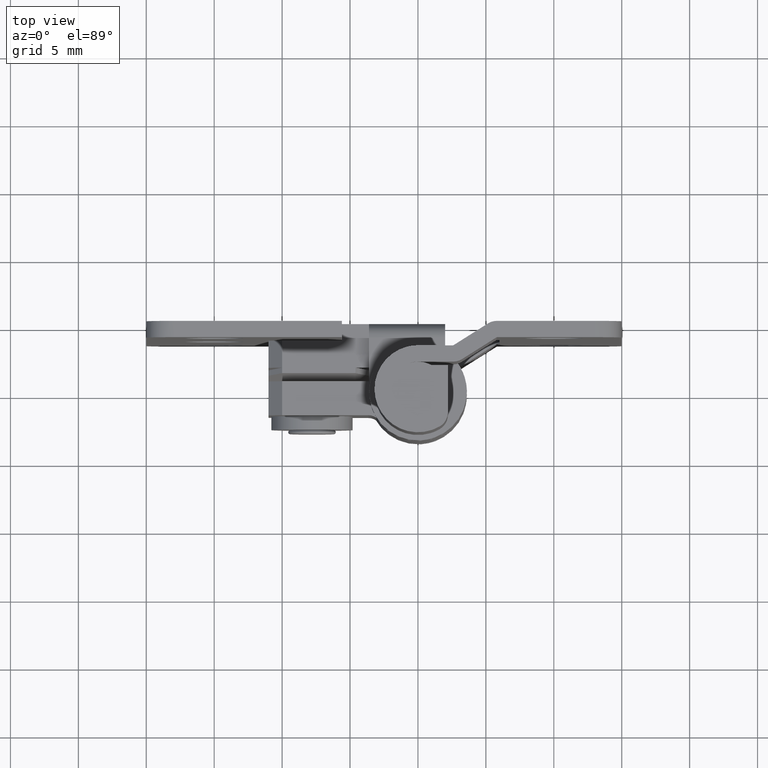
[diagram: clean part render]
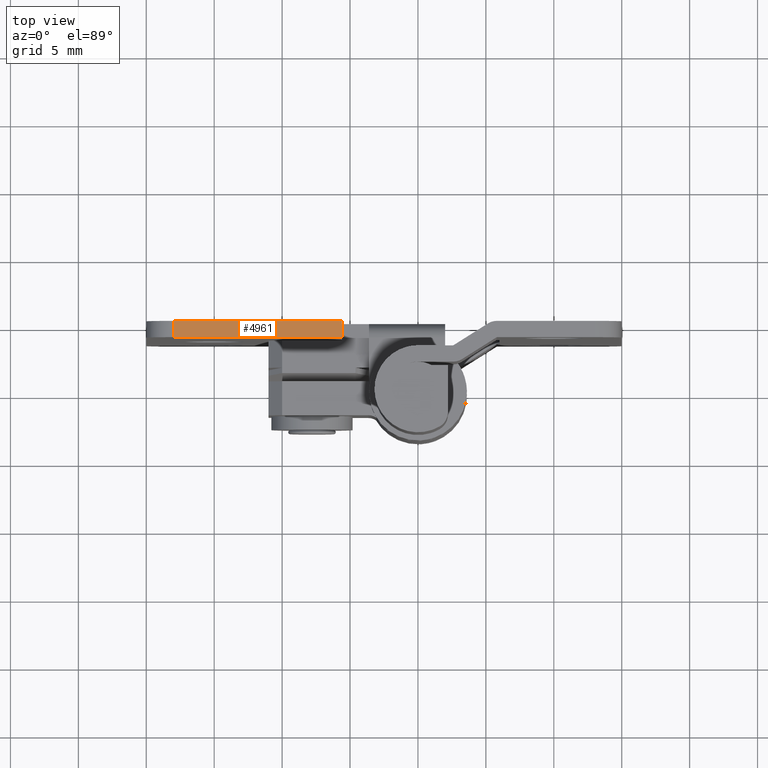
[diagram: same view with one face highlighted and labeled with its STEP entity id]
A machine part, top view. The second image highlights one B-rep face of the part: STEP entity #4961.
In plain terms, the highlighted face is a freeform B-spline surface patch.
Its self-contained STEP definition (entity closure, byte-faithful):
#4778=CARTESIAN_POINT('',(-18.0,3.800000000000000,40.0));
#4779=VERTEX_POINT('',#4778);
#4795=CARTESIAN_POINT('',(-18.0,5.0,40.0));
#4796=VERTEX_POINT('',#4795);
#4797=CARTESIAN_POINT('',(-18.0,5.0,40.0));
#4798=CARTESIAN_POINT('',(-18.0,3.800000000000000,40.0));
#4799=QUASI_UNIFORM_CURVE('',1,(#4797,#4798),.UNSPECIFIED.,.F.,.U.);
#4800=EDGE_CURVE('',#4796,#4779,#4799,.T.);
#4934=CARTESIAN_POINT('',(-18.619379975966389,3.740060002325833,40.0));
#4935=CARTESIAN_POINT('',(-4.980619691439689,3.740060002325833,40.0));
#4936=CARTESIAN_POINT('',(-18.619379975966389,5.059940029860675,40.0));
#4937=CARTESIAN_POINT('',(-4.980619691439689,5.059940029860675,40.0));
#4938=B_SPLINE_SURFACE_WITH_KNOTS('',1,1,((#4934,#4936),(#4935,#4937)),.UNSPECIFIED.,.F.,.F.,.U.,(2,2),(2,2),(0.0,13.638760284526700),(0.041708334948495,0.958291687403247),.UNSPECIFIED.);
#4939=CARTESIAN_POINT('',(-5.600000000000000,5.0,40.0));
#4940=VERTEX_POINT('',#4939);
#4941=CARTESIAN_POINT('',(-18.0,5.0,40.0));
#4942=CARTESIAN_POINT('',(-5.600000000000000,5.0,40.0));
#4943=QUASI_UNIFORM_CURVE('',1,(#4941,#4942),.UNSPECIFIED.,.F.,.U.);
#4944=EDGE_CURVE('',#4796,#4940,#4943,.T.);
#4945=ORIENTED_EDGE('',*,*,#4944,.F.);
#4946=ORIENTED_EDGE('',*,*,#4800,.T.);
#4947=CARTESIAN_POINT('',(-5.600000000000000,3.800000000000000,40.0));
#4948=VERTEX_POINT('',#4947);
#4949=CARTESIAN_POINT('',(-5.600000000000000,3.800000000000000,40.0));
#4950=CARTESIAN_POINT('',(-18.0,3.800000000000000,40.0));
#4951=QUASI_UNIFORM_CURVE('',1,(#4949,#4950),.UNSPECIFIED.,.F.,.U.);
#4952=EDGE_CURVE('',#4948,#4779,#4951,.T.);
#4953=ORIENTED_EDGE('',*,*,#4952,.F.);
#4954=CARTESIAN_POINT('',(-5.600000000000000,3.800000000000000,40.0));
#4955=CARTESIAN_POINT('',(-5.600000000000000,5.0,40.0));
#4956=QUASI_UNIFORM_CURVE('',1,(#4954,#4955),.UNSPECIFIED.,.F.,.U.);
#4957=EDGE_CURVE('',#4948,#4940,#4956,.T.);
#4958=ORIENTED_EDGE('',*,*,#4957,.T.);
#4959=EDGE_LOOP('',(#4945,#4946,#4953,#4958));
#4960=FACE_OUTER_BOUND('',#4959,.T.);
#4961=ADVANCED_FACE('',(#4960),#4938,.T.);